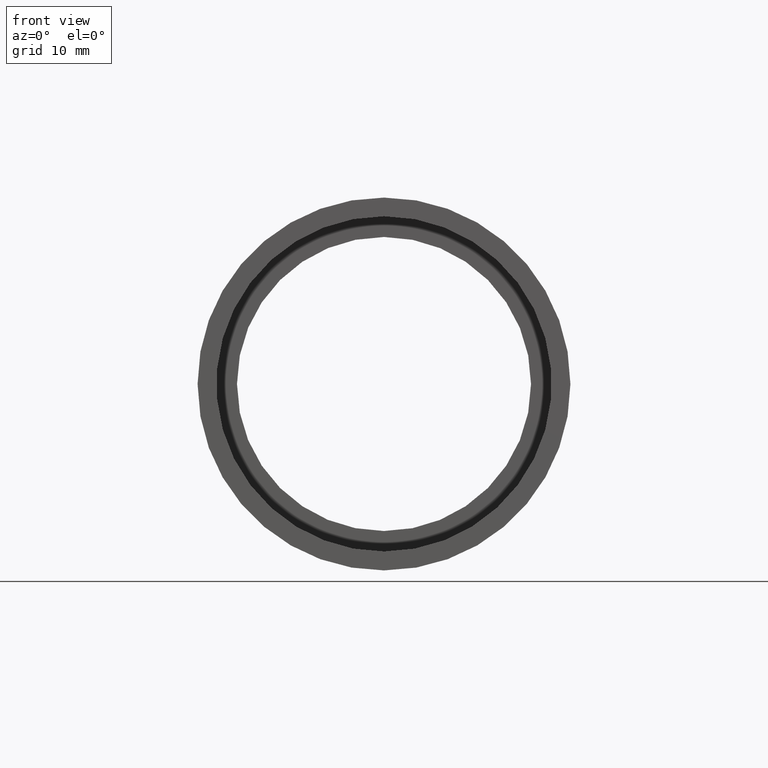
[diagram: clean part render]
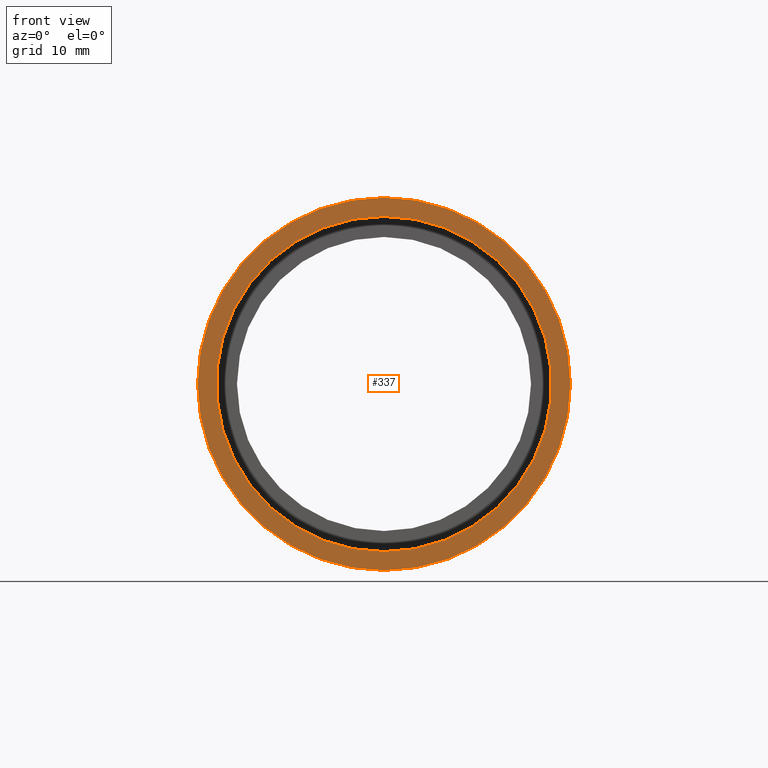
[diagram: same view with one face highlighted and labeled with its STEP entity id]
A machine part, front view. The second image highlights one B-rep face of the part: STEP entity #337.
In plain terms, the highlighted planar face has unit normal (-0, 1, 0).
Its self-contained STEP definition (entity closure, byte-faithful):
#42 = DIRECTION ( 'NONE',  ( 0.0000000000000000000, 0.0000000000000000000, 1.000000000000000000 ) ) ;
#59 = CARTESIAN_POINT ( 'NONE',  ( 0.0000000000000000000, 2.775557561562891400E-014, 14.25000000000000000 ) ) ;
#60 = CIRCLE ( 'NONE', #140, 15.85000000000002100 ) ;
#68 = CIRCLE ( 'NONE', #618, 14.25000000000000000 ) ;
#78 = VERTEX_POINT ( 'NONE', #59 ) ;
#102 = VERTEX_POINT ( 'NONE', #530 ) ;
#125 = CARTESIAN_POINT ( 'NONE',  ( 0.0000000000000000000, 2.775557561562891400E-014, 0.0000000000000000000 ) ) ;
#128 = DIRECTION ( 'NONE',  ( -0.0000000000000000000, 1.000000000000000000, -0.0000000000000000000 ) ) ;
#129 = DIRECTION ( 'NONE',  ( 0.0000000000000000000, 0.0000000000000000000, 1.000000000000000000 ) ) ;
#132 = PLANE ( 'NONE',  #340 ) ;
#140 = AXIS2_PLACEMENT_3D ( 'NONE', #374, #320, #42 ) ;
#167 = CARTESIAN_POINT ( 'NONE',  ( 0.0000000000000000000, -2.775557561562891400E-014, 15.85000000000002100 ) ) ;
#168 = ORIENTED_EDGE ( 'NONE', *, *, #443, .T. ) ;
#224 = DIRECTION ( 'NONE',  ( -0.0000000000000000000, 1.000000000000000000, 0.0000000000000000000 ) ) ;
#226 = DIRECTION ( 'NONE',  ( -0.0000000000000000000, 1.000000000000000000, -0.0000000000000000000 ) ) ;
#247 = VERTEX_POINT ( 'NONE', #167 ) ;
#271 = DIRECTION ( 'NONE',  ( 0.0000000000000000000, 0.0000000000000000000, 1.000000000000000000 ) ) ;
#287 = EDGE_CURVE ( 'NONE', #78, #557, #68, .T. ) ;
#320 = DIRECTION ( 'NONE',  ( -0.0000000000000000000, 1.000000000000000000, -0.0000000000000000000 ) ) ;
#327 = ORIENTED_EDGE ( 'NONE', *, *, #574, .F. ) ;
#337 = ADVANCED_FACE ( 'NONE', ( #397, #597 ), #132, .F. ) ;
#340 = AXIS2_PLACEMENT_3D ( 'NONE', #510, #224, #559 ) ;
#356 = ORIENTED_EDGE ( 'NONE', *, *, #287, .T. ) ;
#368 = CARTESIAN_POINT ( 'NONE',  ( 0.0000000000000000000, 2.775557561562891400E-014, 0.0000000000000000000 ) ) ;
#369 = CARTESIAN_POINT ( 'NONE',  ( 0.0000000000000000000, -2.775557561562891400E-014, 0.0000000000000000000 ) ) ;
#374 = CARTESIAN_POINT ( 'NONE',  ( 0.0000000000000000000, -2.775557561562891400E-014, 0.0000000000000000000 ) ) ;
#397 = FACE_OUTER_BOUND ( 'NONE', #453, .T. ) ;
#418 = DIRECTION ( 'NONE',  ( -0.0000000000000000000, 1.000000000000000000, -0.0000000000000000000 ) ) ;
#429 = ORIENTED_EDGE ( 'NONE', *, *, #604, .F. ) ;
#443 = EDGE_CURVE ( 'NONE', #557, #78, #475, .T. ) ;
#453 = EDGE_LOOP ( 'NONE', ( #327, #429 ) ) ;
#455 = AXIS2_PLACEMENT_3D ( 'NONE', #368, #418, #271 ) ;
#475 = CIRCLE ( 'NONE', #455, 14.25000000000000000 ) ;
#510 = CARTESIAN_POINT ( 'NONE',  ( 14.25000000000000000, 8.726008142763375300E-015, 0.0000000000000000000 ) ) ;
#530 = CARTESIAN_POINT ( 'NONE',  ( 1.941065176648557100E-015, -2.775557561562891400E-014, -15.85000000000002100 ) ) ;
#535 = AXIS2_PLACEMENT_3D ( 'NONE', #369, #226, #617 ) ;
#554 = EDGE_LOOP ( 'NONE', ( #356, #168 ) ) ;
#557 = VERTEX_POINT ( 'NONE', #614 ) ;
#559 = DIRECTION ( 'NONE',  ( 0.0000000000000000000, 0.0000000000000000000, 1.000000000000000000 ) ) ;
#574 = EDGE_CURVE ( 'NONE', #247, #102, #623, .T. ) ;
#597 = FACE_BOUND ( 'NONE', #554, .T. ) ;
#604 = EDGE_CURVE ( 'NONE', #102, #247, #60, .T. ) ;
#614 = CARTESIAN_POINT ( 'NONE',  ( 1.745121688784978200E-015, 2.775557561562891400E-014, -14.25000000000000000 ) ) ;
#617 = DIRECTION ( 'NONE',  ( 0.0000000000000000000, 0.0000000000000000000, 1.000000000000000000 ) ) ;
#618 = AXIS2_PLACEMENT_3D ( 'NONE', #125, #128, #129 ) ;
#623 = CIRCLE ( 'NONE', #535, 15.85000000000002100 ) ;